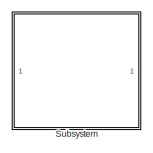
[diagram: root canvas - part 1/3, top left region]
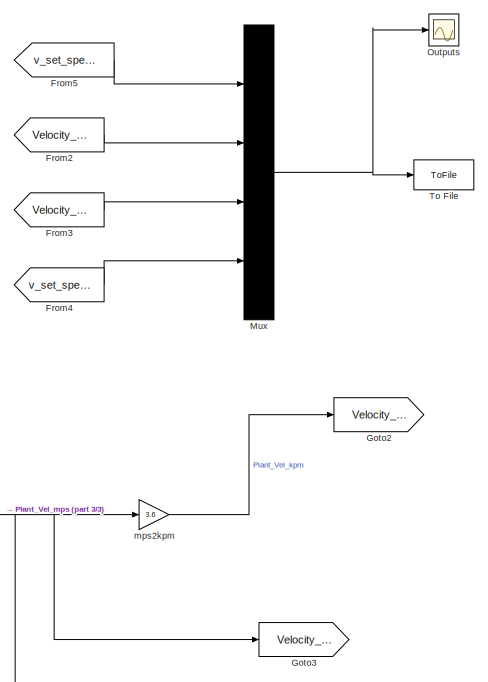
[diagram: root canvas - part 2/3, middle right region]
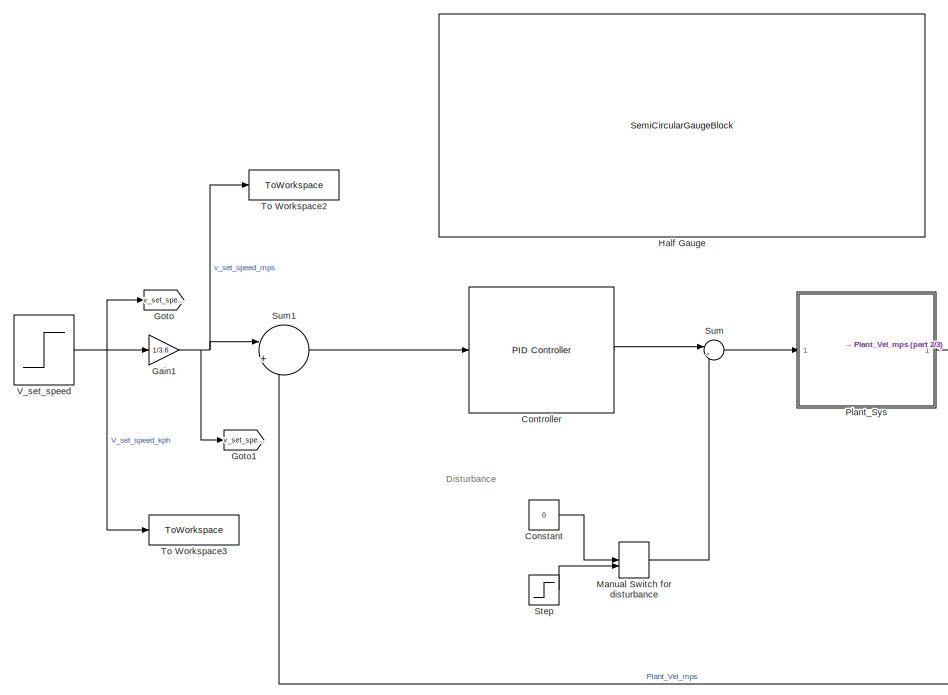
[diagram: root canvas - part 3/3, bottom center region]
MODEL slx_11fc1302e68b
KIND model
CONFIG AbsTol = auto
CONFIG EnableMultiTasking = off
CONFIG FixedStep = auto
CONFIG InitFcn = Cruise_Control_design
CONFIG MaxStep = auto
CONFIG MinStep = auto
CONFIG RelTol = 1e-3
CONFIG SampleTimeConstraint = Unconstrained
CONFIG SolverName = VariableStepAuto
CONFIG StartTime = 0.0
CONFIG StopTime = sim_time
BLOCK [Constant] Constant
  Value = 0
BLOCK [Reference] Controller  REF=pid_lib/PID Controller
  Ports = [1, 1]
  SourceBlock = pid_lib/PID Controller
  SourceProductBaseCode = SL
  SourceType = PID 1dof
BLOCK [From] From2
  GotoTag = Velocity_kph
BLOCK [From] From3
  GotoTag = Velocity_mps
BLOCK [From] From4
  GotoTag = v_set_speed_kph
BLOCK [From] From5
  GotoTag = v_set_speed_mps
BLOCK [Gain] Gain1
  Gain = 1/3.6
BLOCK [Goto] Goto
  GotoTag = v_set_speed_kph
BLOCK [Goto] Goto1
  GotoTag = v_set_speed_mps
BLOCK [Goto] Goto2
  GotoTag = Velocity_kph
BLOCK [Goto] Goto3
  GotoTag = Velocity_mps
BLOCK [SemiCircularGaugeBlock] Half Gauge
  ScaleMax = 250
BLOCK [ManualSwitch] Manual Switch for  disturbance
  NameLocation = right
BLOCK [Mux] Mux
  DisplayOption = bar
  Ports = [4, 1]
BLOCK [Scope] Outputs
  Floating = off
  NumInputPorts = 1
  Ports = [1]
  ScopeSpecificationString = Simulink.scopes.TimeScopeBlockCfg('CurrentConfiguration', extmgr.ConfigurationSet(extmgr.Configuration('Core','General UI',true,'DisplayFullSourceName',true),extmgr.Configuration('Core','Source UI',true),extmgr.Configuration('Sources','WiredSimulink',true,'DataLoggingVariableName','ScopeData1'),extmgr.Configuration('Visuals','Time Domain',true,'SerializedDisplays',{struct('MinYLimReal','-1.64188',...<+1539ch>
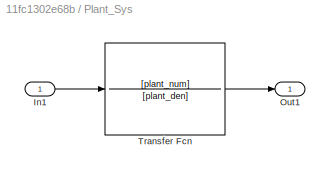
BLOCK [SubSystem] Plant_Sys
  Ports = [1, 1]
  RequestExecContextInheritance = off
BLOCK [Inport] Plant_Sys/In1
BLOCK [Outport] Plant_Sys/Out1
BLOCK [TransferFcn] Plant_Sys/Transfer Fcn
  Denominator = [plant_den]
  Numerator = [plant_num]
BLOCK [Step] Step
  After = m*9.81*sin(pi/45)
  SampleTime = 0
  Time = 100
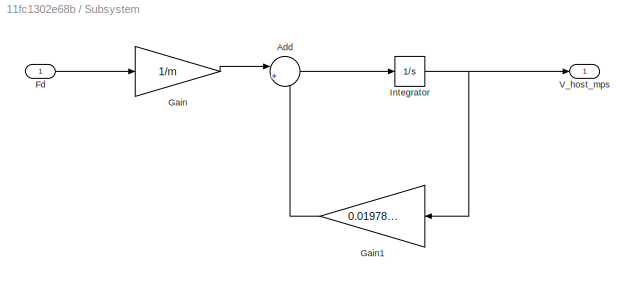
BLOCK [SubSystem] Subsystem
  Commented = on
  Ports = [1, 1]
  RequestExecContextInheritance = off
BLOCK [Sum] Subsystem/Add
  Inputs = |+-
  Ports = [2, 1]
BLOCK [Inport] Subsystem/Fd
BLOCK [Gain] Subsystem/Gain
  Gain = 1/m
BLOCK [Gain] Subsystem/Gain1
  Gain = 0.01978804428
  NameLocation = top
BLOCK [Integrator] Subsystem/Integrator
  Ports = [1, 1]
BLOCK [Outport] Subsystem/V_host_mps
BLOCK [Sum] Sum
  Inputs = |++
  Ports = [2, 1]
BLOCK [Sum] Sum1
  Inputs = |+-
  Ports = [2, 1]
BLOCK [ToFile] To File
  Filename = velocity.mat
  Ports = [1]
BLOCK [ToWorkspace] To Workspace2
  FixptAsFi = on
  MaxDataPoints = inf
  Ports = [1]
  SampleTime = -1
  SaveFormat = Timeseries
  VariableName = V_set_speed_mps
BLOCK [ToWorkspace] To Workspace3
  FixptAsFi = on
  MaxDataPoints = inf
  Ports = [1]
  SampleTime = -1
  SaveFormat = Timeseries
  VariableName = V_set_speed_kph
BLOCK [Step] V_set_speed
  After = V_set_speed
  SampleTime = 0
BLOCK [Gain] mps2kpm
  Gain = 3.6
ANNOTATION (root): Disturbance
LINE Constant:1 -> Manual Switch for  disturbance:1
LINE Controller:1 -> Sum:1
LINE From2:1 -> Mux:2
LINE From3:1 -> Mux:3
LINE From4:1 -> Mux:4
LINE From5:1 -> Mux:1
NET Gain1:1 -> Goto1:1, Sum1:1, To Workspace2:1
LINE Manual Switch for  disturbance:1 -> Sum:2
NET Mux:1 -> Outputs:1, To File:1
LINE Plant_Sys/In1:1 -> Plant_Sys/Transfer Fcn:1
LINE Plant_Sys/Transfer Fcn:1 -> Plant_Sys/Out1:1
NET Plant_Sys:1 -> Goto3:1, Sum1:2, mps2kpm:1
LINE Step:1 -> Manual Switch for  disturbance:2
LINE Subsystem/Add:1 -> Subsystem/Integrator:1
LINE Subsystem/Fd:1 -> Subsystem/Gain:1
LINE Subsystem/Gain1:1 -> Subsystem/Add:2
LINE Subsystem/Gain:1 -> Subsystem/Add:1
NET Subsystem/Integrator:1 -> Subsystem/Gain1:1, Subsystem/V_host_mps:1
LINE Sum1:1 -> Controller:1
LINE Sum:1 -> Plant_Sys:1
NET V_set_speed:1 -> Gain1:1, Goto:1, To Workspace3:1
LINE mps2kpm:1 -> Goto2:1
note: NET lines group one-source signal fan-out (src -> all destinations, sorted); 1:1 wires keep LINE
